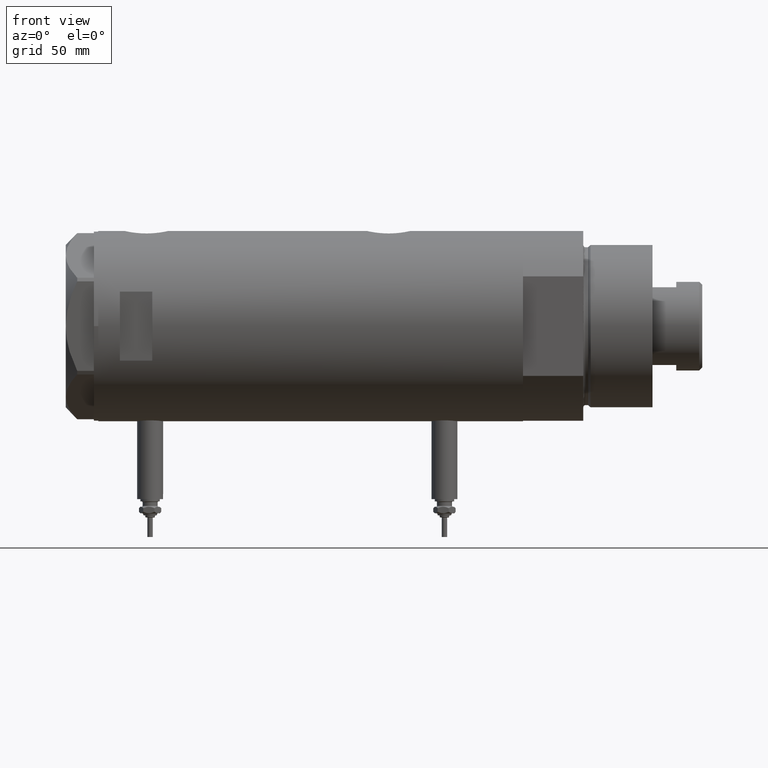
[diagram: clean part render]
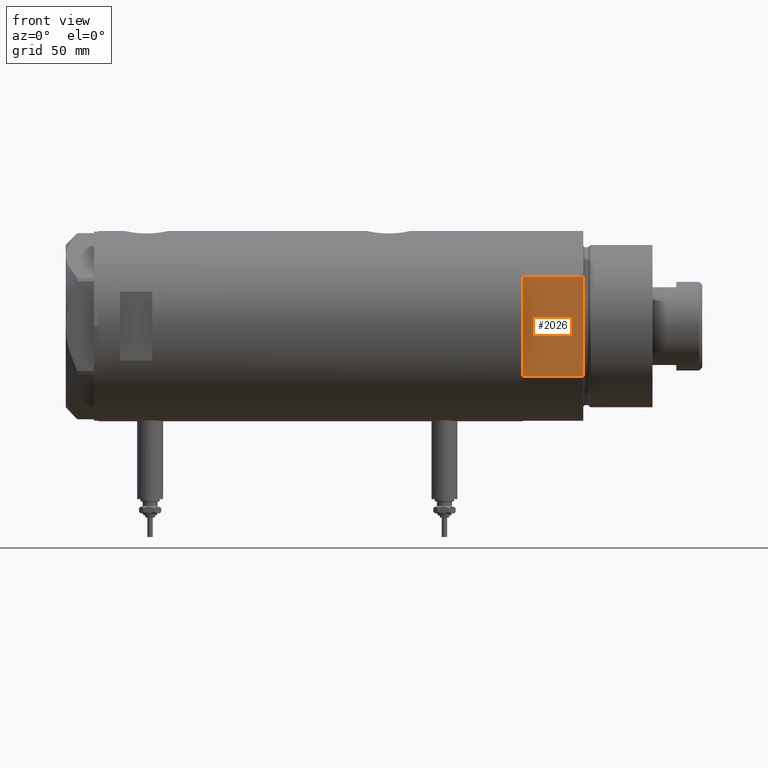
[diagram: same view with one face highlighted and labeled with its STEP entity id]
A machine part, front view. The second image highlights one B-rep face of the part: STEP entity #2026.
In plain terms, the highlighted planar face has unit normal (-0, 1, 0).
Its self-contained STEP definition (entity closure, byte-faithful):
#128 = VERTEX_POINT ( 'NONE', #368 ) ;
#368 = CARTESIAN_POINT ( 'NONE',  ( -23.01629857296780557, -37.50000000000000000, 0.000000000000000000 ) ) ;
#425 = ORIENTED_EDGE ( 'NONE', *, *, #1313, .F. ) ;
#489 = LINE ( 'NONE', #4303, #4930 ) ;
#508 = DIRECTION ( 'NONE',  ( -1.000000000000000000, -0.000000000000000000, -0.000000000000000000 ) ) ;
#654 = VECTOR ( 'NONE', #4452, 1000.000000000000000 ) ;
#717 = EDGE_CURVE ( 'NONE', #2704, #964, #2142, .T. ) ;
#811 = VERTEX_POINT ( 'NONE', #1529 ) ;
#923 = CARTESIAN_POINT ( 'NONE',  ( -23.01629857296780557, -37.50000000000000000, 0.000000000000000000 ) ) ;
#964 = VERTEX_POINT ( 'NONE', #4047 ) ;
#1088 = LINE ( 'NONE', #5760, #4551 ) ;
#1313 = EDGE_CURVE ( 'NONE', #964, #128, #2150, .T. ) ;
#1529 = CARTESIAN_POINT ( 'NONE',  ( -23.01629857296780557, -37.50000000000000000, 27.89999999999999858 ) ) ;
#1579 = EDGE_CURVE ( 'NONE', #4978, #811, #4483, .T. ) ;
#1780 = LINE ( 'NONE', #923, #3789 ) ;
#1793 = EDGE_CURVE ( 'NONE', #128, #811, #489, .T. ) ;
#1815 = EDGE_CURVE ( 'NONE', #3780, #4374, #2879, .T. ) ;
#1854 = VECTOR ( 'NONE', #508, 1000.000000000000000 ) ;
#1873 = FACE_OUTER_BOUND ( 'NONE', #3617, .T. ) ;
#1923 = PLANE ( 'NONE',  #3685 ) ;
#1959 = CARTESIAN_POINT ( 'NONE',  ( 23.01629857296780557, -37.50000000000000000, 0.000000000000000000 ) ) ;
#2026 = ADVANCED_FACE ( 'NONE', ( #1873 ), #1923, .F. ) ;
#2142 = LINE ( 'NONE', #3271, #1854 ) ;
#2150 = LINE ( 'NONE', #2708, #654 ) ;
#2216 = EDGE_CURVE ( 'NONE', #4374, #4978, #1088, .T. ) ;
#2384 = DIRECTION ( 'NONE',  ( -0.000000000000000000, 1.000000000000000000, 0.000000000000000000 ) ) ;
#2498 = ORIENTED_EDGE ( 'NONE', *, *, #1579, .T. ) ;
#2568 = DIRECTION ( 'NONE',  ( -1.000000000000000000, -0.000000000000000000, -0.000000000000000000 ) ) ;
#2662 = CARTESIAN_POINT ( 'NONE',  ( 0.000000000000000000, -37.50000000000000000, 27.89999999999999858 ) ) ;
#2704 = VERTEX_POINT ( 'NONE', #2928 ) ;
#2708 = CARTESIAN_POINT ( 'NONE',  ( -23.01629857296780557, -37.50000000000000000, 0.000000000000000000 ) ) ;
#2819 = CARTESIAN_POINT ( 'NONE',  ( -23.01629857296780557, -37.50000000000000000, 0.000000000000000000 ) ) ;
#2879 = LINE ( 'NONE', #1959, #4163 ) ;
#2928 = CARTESIAN_POINT ( 'NONE',  ( 13.91941090707505957, -37.50000000000000000, 0.000000000000000000 ) ) ;
#3271 = CARTESIAN_POINT ( 'NONE',  ( -23.01629857296780557, -37.50000000000000000, 0.000000000000000000 ) ) ;
#3356 = EDGE_CURVE ( 'NONE', #3780, #2704, #1780, .T. ) ;
#3566 = CARTESIAN_POINT ( 'NONE',  ( -23.01629857296780557, -37.50000000000000000, 27.89999999999999858 ) ) ;
#3617 = EDGE_LOOP ( 'NONE', ( #4933, #2498, #4126, #425, #4618, #4103, #5170 ) ) ;
#3685 = AXIS2_PLACEMENT_3D ( 'NONE', #2819, #2384, #3746 ) ;
#3746 = DIRECTION ( 'NONE',  ( 0.000000000000000000, -0.000000000000000000, 1.000000000000000000 ) ) ;
#3762 = CARTESIAN_POINT ( 'NONE',  ( 23.01629857296780557, -37.50000000000000000, 0.000000000000000000 ) ) ;
#3780 = VERTEX_POINT ( 'NONE', #3762 ) ;
#3789 = VECTOR ( 'NONE', #5950, 1000.000000000000000 ) ;
#4047 = CARTESIAN_POINT ( 'NONE',  ( -13.91941090707505957, -37.50000000000000000, 0.000000000000000000 ) ) ;
#4103 = ORIENTED_EDGE ( 'NONE', *, *, #3356, .F. ) ;
#4126 = ORIENTED_EDGE ( 'NONE', *, *, #1793, .F. ) ;
#4163 = VECTOR ( 'NONE', #4740, 1000.000000000000000 ) ;
#4303 = CARTESIAN_POINT ( 'NONE',  ( -23.01629857296780557, -37.50000000000000000, 0.000000000000000000 ) ) ;
#4374 = VERTEX_POINT ( 'NONE', #5787 ) ;
#4452 = DIRECTION ( 'NONE',  ( -1.000000000000000000, -0.000000000000000000, -0.000000000000000000 ) ) ;
#4483 = LINE ( 'NONE', #3566, #4565 ) ;
#4551 = VECTOR ( 'NONE', #2568, 1000.000000000000000 ) ;
#4565 = VECTOR ( 'NONE', #4572, 1000.000000000000000 ) ;
#4572 = DIRECTION ( 'NONE',  ( -1.000000000000000000, -0.000000000000000000, -0.000000000000000000 ) ) ;
#4618 = ORIENTED_EDGE ( 'NONE', *, *, #717, .F. ) ;
#4740 = DIRECTION ( 'NONE',  ( -0.000000000000000000, -0.000000000000000000, 1.000000000000000000 ) ) ;
#4817 = DIRECTION ( 'NONE',  ( -0.000000000000000000, -0.000000000000000000, 1.000000000000000000 ) ) ;
#4930 = VECTOR ( 'NONE', #4817, 1000.000000000000000 ) ;
#4933 = ORIENTED_EDGE ( 'NONE', *, *, #2216, .T. ) ;
#4978 = VERTEX_POINT ( 'NONE', #2662 ) ;
#5170 = ORIENTED_EDGE ( 'NONE', *, *, #1815, .T. ) ;
#5760 = CARTESIAN_POINT ( 'NONE',  ( -23.01629857296780557, -37.50000000000000000, 27.89999999999999858 ) ) ;
#5787 = CARTESIAN_POINT ( 'NONE',  ( 23.01629857296780557, -37.50000000000000000, 27.89999999999999858 ) ) ;
#5950 = DIRECTION ( 'NONE',  ( -1.000000000000000000, -0.000000000000000000, -0.000000000000000000 ) ) ;